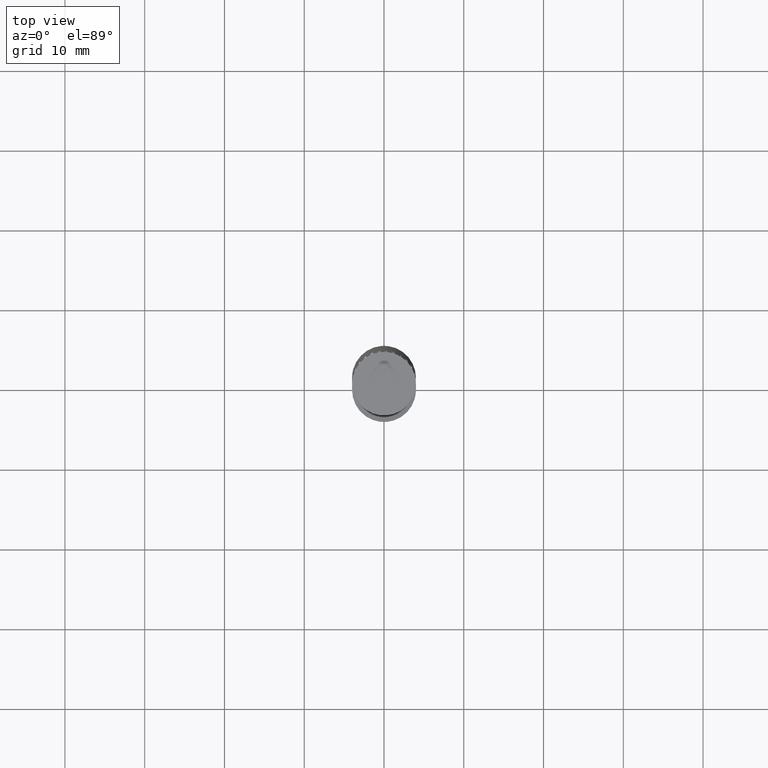
[diagram: clean part render]
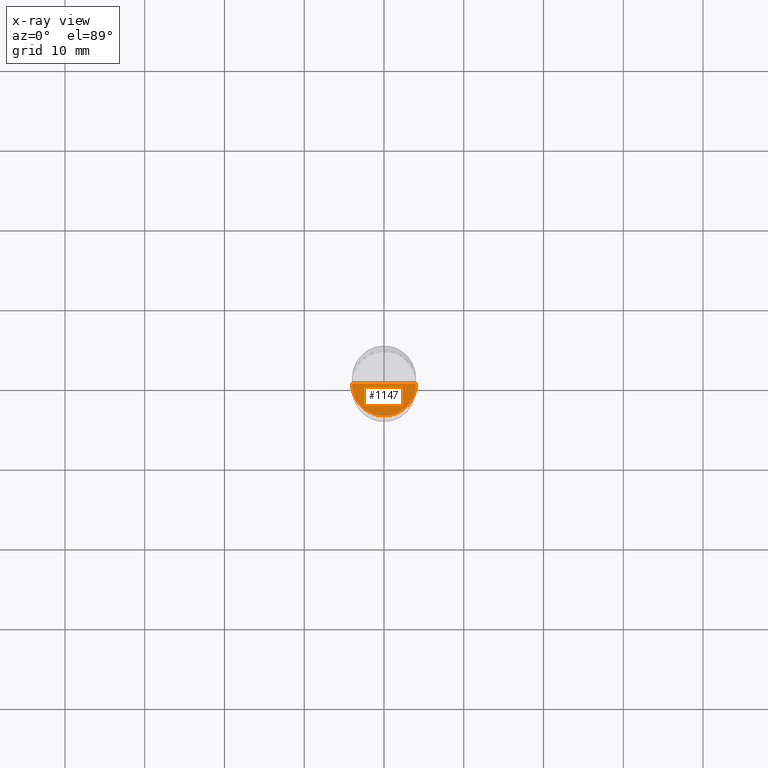
[diagram: x-ray — body ghosted, one internal face saturated and labeled with its STEP entity id]
A machine part, top view, then the same camera in x-ray: the body is ghosted and one INTERNAL B-rep face — a face not visible from any outside direction — is saturated and labeled: STEP entity #1147.
In plain terms, the highlighted face is a freeform B-spline surface patch.
Its self-contained STEP definition (entity closure, byte-faithful):
#994=CARTESIAN_POINT('',(4.0,0.0,-7.0));
#998=CARTESIAN_POINT('',(-4.0,0.0,-7.0));
#999=CARTESIAN_POINT('',(0.0,0.0,-7.0));
#1003=CARTESIAN_POINT('',(-4.0,-4.0,-7.0));
#1004=CARTESIAN_POINT('',(0.0,-4.0,-7.0));
#1005=CARTESIAN_POINT('',(4.0,-4.0,-7.0));
#1132=(
BOUNDED_SURFACE()
B_SPLINE_SURFACE(1,2,(
(#998,#1003,#1004,#1005,#994),
(#999,#999,#999,#999,#999)
), .UNSPECIFIED.,.F.,.F.,.F.)
B_SPLINE_SURFACE_WITH_KNOTS((2,2),(3,2,3),(
0.0,1.0),(
0.0,0.5,1.0), .UNSPECIFIED.)
GEOMETRIC_REPRESENTATION_ITEM()
RATIONAL_B_SPLINE_SURFACE(((1.0,0.707106781187,1.0,0.707106781187,1.0),
(1.0,0.707106781187,1.0,0.707106781187,1.0)
))
REPRESENTATION_ITEM('')
SURFACE()
);
#1133=(
BOUNDED_CURVE()
B_SPLINE_CURVE(2,(#994,#1005,#1004,#1003,#998),.UNSPECIFIED.,.F.,.F.)
B_SPLINE_CURVE_WITH_KNOTS((3,2,3),
(0.0,0.5,1.0),.UNSPECIFIED.)
CURVE()
GEOMETRIC_REPRESENTATION_ITEM()
RATIONAL_B_SPLINE_CURVE((1.0,0.707106781187,1.0,0.707106781187,1.0))
REPRESENTATION_ITEM('')
);
#1134=(
BOUNDED_CURVE()
B_SPLINE_CURVE(1,(#998,#999),.UNSPECIFIED.,.F.,.F.)
B_SPLINE_CURVE_WITH_KNOTS((2,2),
(0.0,1.0),.UNSPECIFIED.)
CURVE()
GEOMETRIC_REPRESENTATION_ITEM()
RATIONAL_B_SPLINE_CURVE((1.0,1.0))
REPRESENTATION_ITEM('')
);
#1135=(
BOUNDED_CURVE()
B_SPLINE_CURVE(1,(#999,#994),.UNSPECIFIED.,.F.,.F.)
B_SPLINE_CURVE_WITH_KNOTS((2,2),
(0.0,1.0),.UNSPECIFIED.)
CURVE()
GEOMETRIC_REPRESENTATION_ITEM()
RATIONAL_B_SPLINE_CURVE((1.0,1.0))
REPRESENTATION_ITEM('')
);
#1136=VERTEX_POINT('',#994);
#1137=VERTEX_POINT('',#998);
#1138=VERTEX_POINT('',#999);
#1139=EDGE_CURVE('',#1136,#1137,#1133,.T.);
#1140=EDGE_CURVE('',#1137,#1138,#1134,.T.);
#1141=EDGE_CURVE('',#1138,#1136,#1135,.T.);
#1142=ORIENTED_EDGE('',*,*,#1139,.T.);
#1143=ORIENTED_EDGE('',*,*,#1140,.T.);
#1144=ORIENTED_EDGE('',*,*,#1141,.T.);
#1145=EDGE_LOOP('',(#1142,#1143,#1144));
#1146=FACE_OUTER_BOUND('',#1145,.T.);
#1147=ADVANCED_FACE('',(#1146),#1132,.T.);